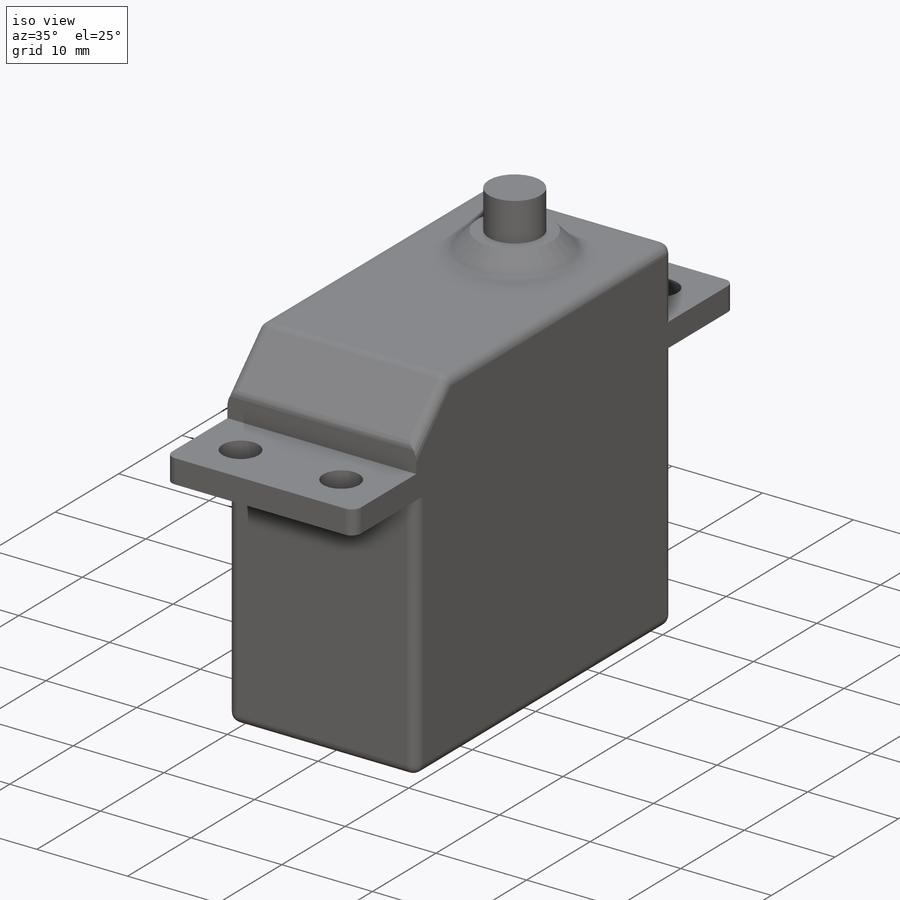
[diagram: iso view]
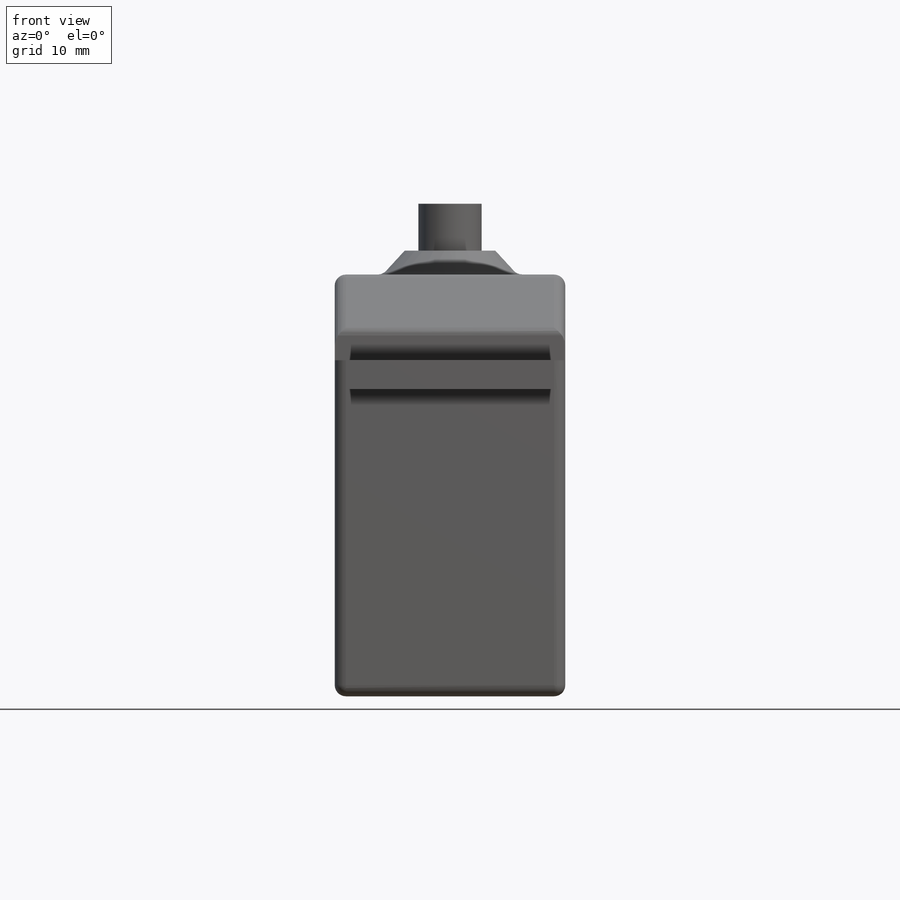
[diagram: front view]
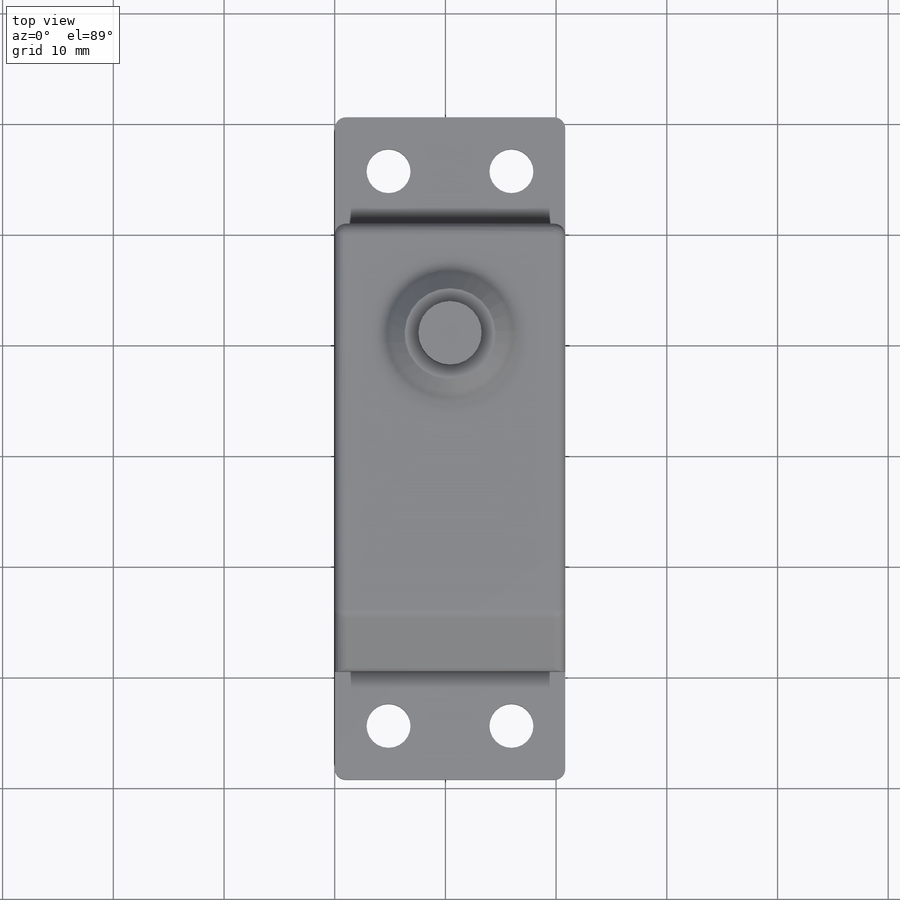
[diagram: top view]
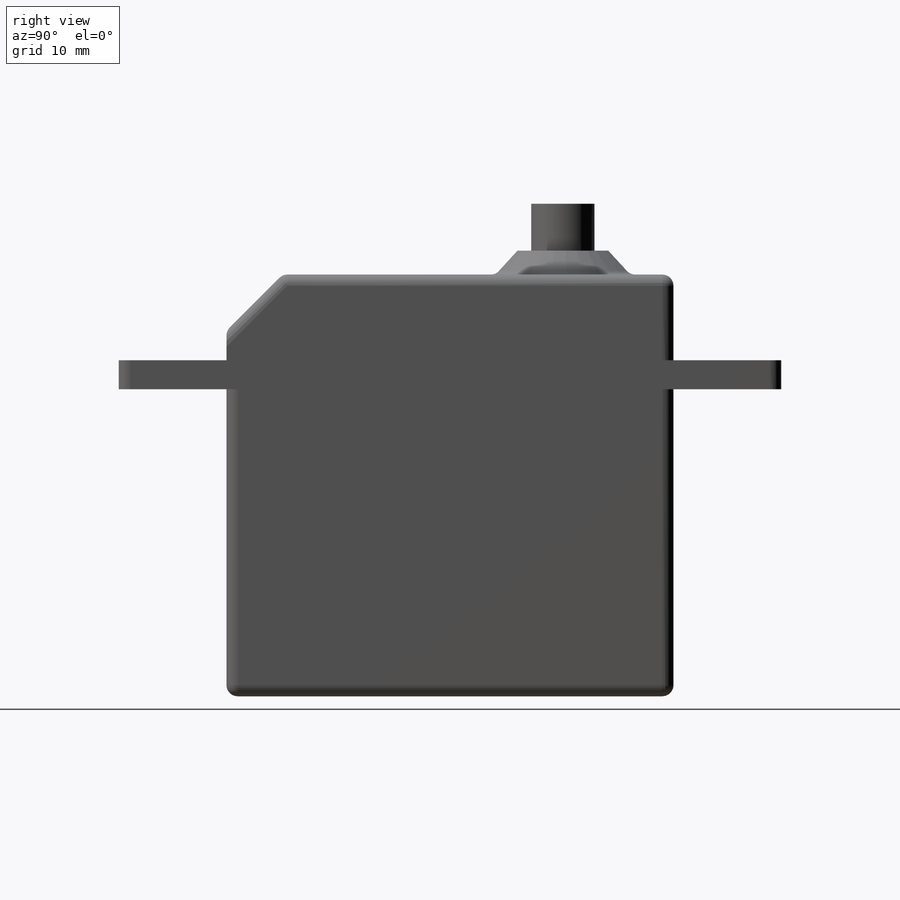
[diagram: right view]
SOLIDWORKS PART (.sldprt)
format: sldprt  version: not decoded by parser v0  size: 269,312 bytes
history: native  units: mm
features: sketch x4, extrude x3, plane x2, material x1, revolve x1, chamfer x1, fillet x1 (+11 scaffold rows collapsed)
feature tree (24):
  scaffold x11  (default folders/planes/origin — collapsed)
  material  "Material <not specified>"
  sketch  "Sketch1"  dims[D1=20.828mm D2=40.386mm]
  extrude  "Boss-Extrude1"  Depth=38.1mm
  plane  "Plane1"  Offset=27.7368mm
  sketch  "Sketch2"  dims[c1.D4=3.9751mm c1.D1=7.239mm c1.D2=4.8641mm c1.D3=4.8641mm c2.D1=4.8641mm]
  extrude  "Boss-Extrude2"  Depth=2.6162mm
  plane  "Plane2"
  sketch  "Sketch4"  dims[D1=2.159mm D2=6.0833mm D3=9.9949mm D4=4.1021mm]
  revolve  "Revolve1"  Angle=360deg
  sketch  "Sketch5"  dims[D1=5.715mm]
  extrude  "Boss-Extrude3"  Depth=4.2418mm
  chamfer  "Chamfer1"  Distance=5.08mm Angle=45deg
  fillet  "Fillet4"  Radius=1.016mm
decode coverage: 10 of 10 modeling features carry decoded parameters
note: suppression state not decoded; provenance and decode notes live in map.json
